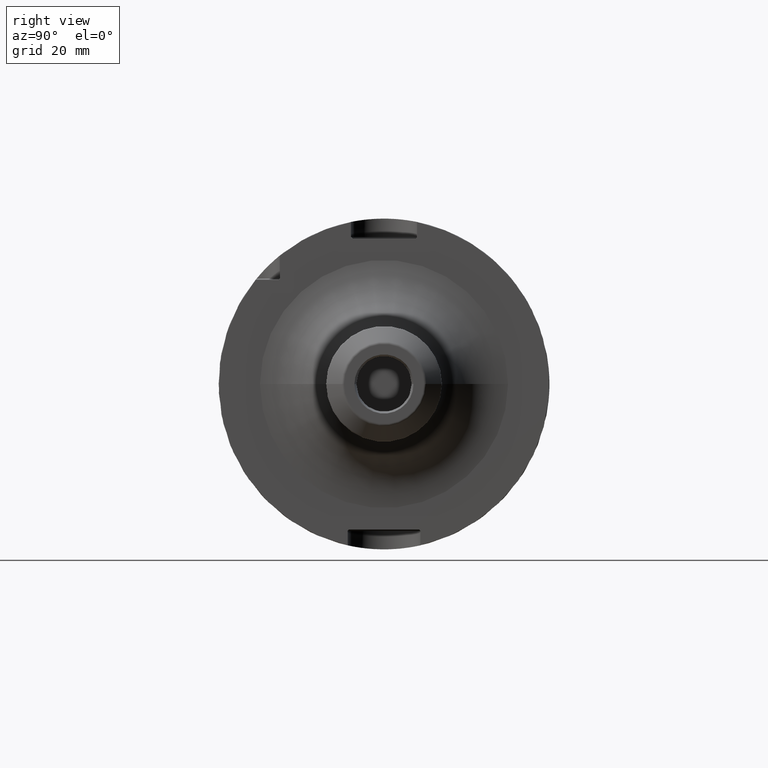
[diagram: clean part render]
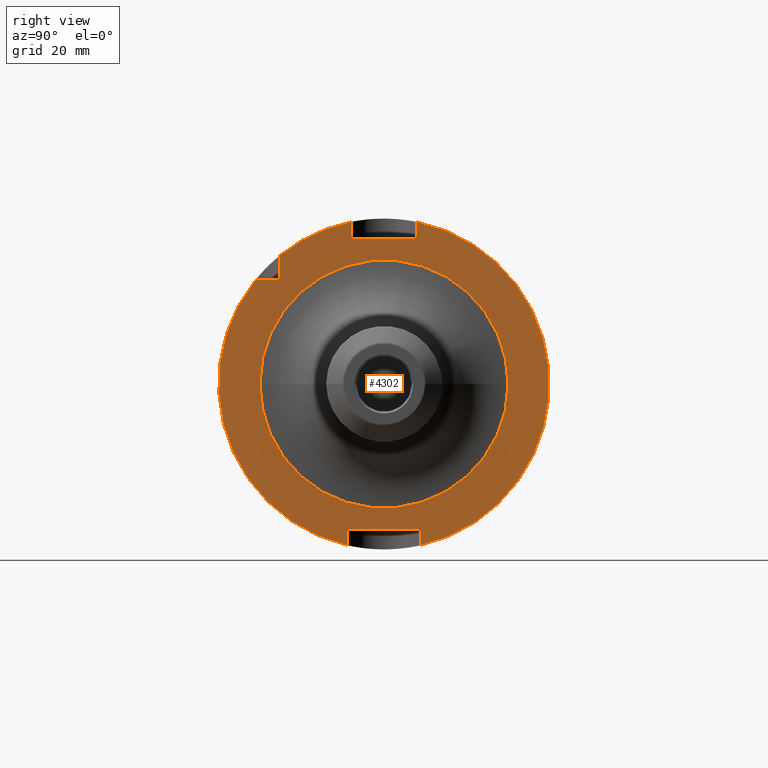
[diagram: same view with one face highlighted and labeled with its STEP entity id]
A machine part, right view. The second image highlights one B-rep face of the part: STEP entity #4302.
In plain terms, the highlighted planar face has unit normal (1, 0, 0).
Its self-contained STEP definition (entity closure, byte-faithful):
#1051=DIRECTION('',(0.E0,-7.071067811865E-1,-7.071067811865E-1));
#1052=VECTOR('',#1051,5.656854249492E-1);
#1053=CARTESIAN_POINT('',(2.9E1,-3.15E1,3.19E1));
#1054=LINE('',#1053,#1052);
#1059=DIRECTION('',(0.E0,1.E0,0.E0));
#1060=VECTOR('',#1059,6.929756630708E0);
#1061=CARTESIAN_POINT('',(2.9E1,-3.882975663071E1,3.15E1));
#1062=LINE('',#1061,#1060);
#1063=DIRECTION('',(0.E0,0.E0,-1.E0));
#1064=VECTOR('',#1063,6.929756630708E0);
#1065=CARTESIAN_POINT('',(2.9E1,-3.15E1,3.882975663071E1));
#1066=LINE('',#1065,#1064);
#1067=DIRECTION('',(0.E0,0.E0,-1.E0));
#1068=VECTOR('',#1067,4.589794855664E0);
#1069=CARTESIAN_POINT('',(2.9E1,-1.E1,4.898979485566E1));
#1070=LINE('',#1069,#1068);
#1071=DIRECTION('',(0.E0,1.E0,0.E0));
#1072=VECTOR('',#1071,1.92E1);
#1073=CARTESIAN_POINT('',(2.9E1,-9.6E0,4.4E1));
#1074=LINE('',#1073,#1072);
#1075=DIRECTION('',(0.E0,0.E0,-1.E0));
#1076=VECTOR('',#1075,4.589794855664E0);
#1077=CARTESIAN_POINT('',(2.9E1,1.E1,4.898979485566E1));
#1078=LINE('',#1077,#1076);
#1079=DIRECTION('',(0.E0,0.E0,1.E0));
#1080=VECTOR('',#1079,4.374993593029E0);
#1081=CARTESIAN_POINT('',(2.9E1,1.1E1,-4.877499359303E1));
#1082=LINE('',#1081,#1080);
#1083=DIRECTION('',(0.E0,-1.E0,0.E0));
#1084=VECTOR('',#1083,2.12E1);
#1085=CARTESIAN_POINT('',(2.9E1,1.06E1,-4.4E1));
#1086=LINE('',#1085,#1084);
#1087=DIRECTION('',(0.E0,0.E0,1.E0));
#1088=VECTOR('',#1087,4.374993593029E0);
#1089=CARTESIAN_POINT('',(2.9E1,-1.1E1,-4.877499359303E1));
#1090=LINE('',#1089,#1088);
#1091=CARTESIAN_POINT('',(2.9E1,0.E0,0.E0));
#1092=DIRECTION('',(1.E0,0.E0,0.E0));
#1093=DIRECTION('',(0.E0,-1.E0,0.E0));
#1094=AXIS2_PLACEMENT_3D('',#1091,#1092,#1093);
#1096=CARTESIAN_POINT('',(2.9E1,0.E0,0.E0));
#1097=DIRECTION('',(1.E0,0.E0,0.E0));
#1098=DIRECTION('',(0.E0,1.E0,0.E0));
#1099=AXIS2_PLACEMENT_3D('',#1096,#1097,#1098);
#1114=CARTESIAN_POINT('',(2.9E1,0.E0,0.E0));
#1115=DIRECTION('',(1.E0,0.E0,0.E0));
#1116=DIRECTION('',(0.E0,2.2E-1,-9.754998718606E-1));
#1117=AXIS2_PLACEMENT_3D('',#1114,#1115,#1116);
#1127=CARTESIAN_POINT('',(2.9E1,0.E0,0.E0));
#1128=DIRECTION('',(1.E0,0.E0,0.E0));
#1129=DIRECTION('',(0.E0,-7.765951326142E-1,6.3E-1));
#1130=AXIS2_PLACEMENT_3D('',#1127,#1128,#1129);
#1144=CARTESIAN_POINT('',(2.9E1,0.E0,0.E0));
#1145=DIRECTION('',(1.E0,0.E0,0.E0));
#1146=DIRECTION('',(0.E0,-2.E-1,9.797958971133E-1));
#1147=AXIS2_PLACEMENT_3D('',#1144,#1145,#1146);
#1251=DIRECTION('',(0.E0,7.071067811866E-1,-7.071067811865E-1));
#1252=VECTOR('',#1251,5.656854249492E-1);
#1253=CARTESIAN_POINT('',(2.9E1,1.06E1,-4.4E1));
#1254=LINE('',#1253,#1252);
#1259=DIRECTION('',(0.E0,7.071067811866E-1,7.071067811865E-1));
#1260=VECTOR('',#1259,5.656854249492E-1);
#1261=CARTESIAN_POINT('',(2.9E1,-1.1E1,-4.44E1));
#1262=LINE('',#1261,#1260);
#1748=DIRECTION('',(0.E0,-7.071067811866E-1,-7.071067811865E-1));
#1749=VECTOR('',#1748,5.656854249492E-1);
#1750=CARTESIAN_POINT('',(2.9E1,1.E1,4.44E1));
#1751=LINE('',#1750,#1749);
#1756=DIRECTION('',(0.E0,-7.071067811866E-1,7.071067811865E-1));
#1757=VECTOR('',#1756,5.656854249492E-1);
#1758=CARTESIAN_POINT('',(2.9E1,-9.6E0,4.4E1));
#1759=LINE('',#1758,#1757);
#2984=CARTESIAN_POINT('',(2.9E1,-9.6E0,4.4E1));
#2985=CARTESIAN_POINT('',(2.9E1,-1.E1,4.44E1));
#2986=VERTEX_POINT('',#2984);
#2987=VERTEX_POINT('',#2985);
#2988=CARTESIAN_POINT('',(2.9E1,1.E1,4.44E1));
#2989=CARTESIAN_POINT('',(2.9E1,9.6E0,4.4E1));
#2990=VERTEX_POINT('',#2988);
#2991=VERTEX_POINT('',#2989);
#2992=CARTESIAN_POINT('',(2.9E1,1.06E1,-4.4E1));
#2993=CARTESIAN_POINT('',(2.9E1,1.1E1,-4.44E1));
#2994=VERTEX_POINT('',#2992);
#2995=VERTEX_POINT('',#2993);
#2996=CARTESIAN_POINT('',(2.9E1,-1.1E1,-4.44E1));
#2997=CARTESIAN_POINT('',(2.9E1,-1.06E1,-4.4E1));
#2998=VERTEX_POINT('',#2996);
#2999=VERTEX_POINT('',#2997);
#3037=CARTESIAN_POINT('',(2.9E1,1.1E1,-4.877499359303E1));
#3039=VERTEX_POINT('',#3037);
#3045=CARTESIAN_POINT('',(2.9E1,-1.1E1,-4.877499359303E1));
#3047=VERTEX_POINT('',#3045);
#3080=CARTESIAN_POINT('',(2.9E1,-1.E1,4.898979485566E1));
#3081=VERTEX_POINT('',#3080);
#3082=CARTESIAN_POINT('',(2.9E1,1.E1,4.898979485566E1));
#3083=VERTEX_POINT('',#3082);
#3086=CARTESIAN_POINT('',(2.9E1,-3.15E1,3.19E1));
#3087=CARTESIAN_POINT('',(2.9E1,-3.19E1,3.15E1));
#3088=VERTEX_POINT('',#3086);
#3089=VERTEX_POINT('',#3087);
#3095=CARTESIAN_POINT('',(2.9E1,-3.882975663071E1,3.15E1));
#3097=VERTEX_POINT('',#3095);
#3099=CARTESIAN_POINT('',(2.9E1,-3.15E1,3.882975663071E1));
#3101=VERTEX_POINT('',#3099);
#3163=CARTESIAN_POINT('',(2.9E1,-3.75E1,0.E0));
#3164=CARTESIAN_POINT('',(2.9E1,3.75E1,0.E0));
#3165=VERTEX_POINT('',#3163);
#3166=VERTEX_POINT('',#3164);
#4258=CARTESIAN_POINT('',(2.9E1,0.E0,0.E0));
#4259=DIRECTION('',(1.E0,0.E0,0.E0));
#4260=DIRECTION('',(0.E0,-1.E0,0.E0));
#4261=AXIS2_PLACEMENT_3D('',#4258,#4259,#4260);
#4262=PLANE('',#4261);
#4264=ORIENTED_EDGE('',*,*,#4263,.T.);
#4265=ORIENTED_EDGE('',*,*,#4248,.F.);
#4267=ORIENTED_EDGE('',*,*,#4266,.F.);
#4269=ORIENTED_EDGE('',*,*,#4268,.F.);
#4271=ORIENTED_EDGE('',*,*,#4270,.T.);
#4273=ORIENTED_EDGE('',*,*,#4272,.F.);
#4275=ORIENTED_EDGE('',*,*,#4274,.T.);
#4277=ORIENTED_EDGE('',*,*,#4276,.F.);
#4279=ORIENTED_EDGE('',*,*,#4278,.F.);
#4281=ORIENTED_EDGE('',*,*,#4280,.F.);
#4283=ORIENTED_EDGE('',*,*,#4282,.T.);
#4285=ORIENTED_EDGE('',*,*,#4284,.F.);
#4287=ORIENTED_EDGE('',*,*,#4286,.T.);
#4289=ORIENTED_EDGE('',*,*,#4288,.F.);
#4291=ORIENTED_EDGE('',*,*,#4290,.F.);
#4293=ORIENTED_EDGE('',*,*,#4292,.F.);
#4294=EDGE_LOOP('',(#4264,#4265,#4267,#4269,#4271,#4273,#4275,#4277,#4279,#4281,
#4283,#4285,#4287,#4289,#4291,#4293));
#4295=FACE_OUTER_BOUND('',#4294,.F.);
#4297=ORIENTED_EDGE('',*,*,#4296,.T.);
#4299=ORIENTED_EDGE('',*,*,#4298,.T.);
#4300=EDGE_LOOP('',(#4297,#4299));
#4301=FACE_BOUND('',#4300,.F.);
#4302=ADVANCED_FACE('',(#4295,#4301),#4262,.T.);
#1095=CIRCLE('',#1094,3.75E1);
#1100=CIRCLE('',#1099,3.75E1);
#1118=CIRCLE('',#1117,5.E1);
#1131=CIRCLE('',#1130,5.E1);
#1148=CIRCLE('',#1147,5.E1);
#4248=EDGE_CURVE('',#3088,#3089,#1054,.T.);
#4263=EDGE_CURVE('',#3097,#3089,#1062,.T.);
#4266=EDGE_CURVE('',#3101,#3088,#1066,.T.);
#4268=EDGE_CURVE('',#3081,#3101,#1148,.T.);
#4270=EDGE_CURVE('',#3081,#2987,#1070,.T.);
#4272=EDGE_CURVE('',#2986,#2987,#1759,.T.);
#4274=EDGE_CURVE('',#2986,#2991,#1074,.T.);
#4276=EDGE_CURVE('',#2990,#2991,#1751,.T.);
#4278=EDGE_CURVE('',#3083,#2990,#1078,.T.);
#4280=EDGE_CURVE('',#3039,#3083,#1118,.T.);
#4282=EDGE_CURVE('',#3039,#2995,#1082,.T.);
#4284=EDGE_CURVE('',#2994,#2995,#1254,.T.);
#4286=EDGE_CURVE('',#2994,#2999,#1086,.T.);
#4288=EDGE_CURVE('',#2998,#2999,#1262,.T.);
#4290=EDGE_CURVE('',#3047,#2998,#1090,.T.);
#4292=EDGE_CURVE('',#3097,#3047,#1131,.T.);
#4296=EDGE_CURVE('',#3165,#3166,#1095,.T.);
#4298=EDGE_CURVE('',#3166,#3165,#1100,.T.);